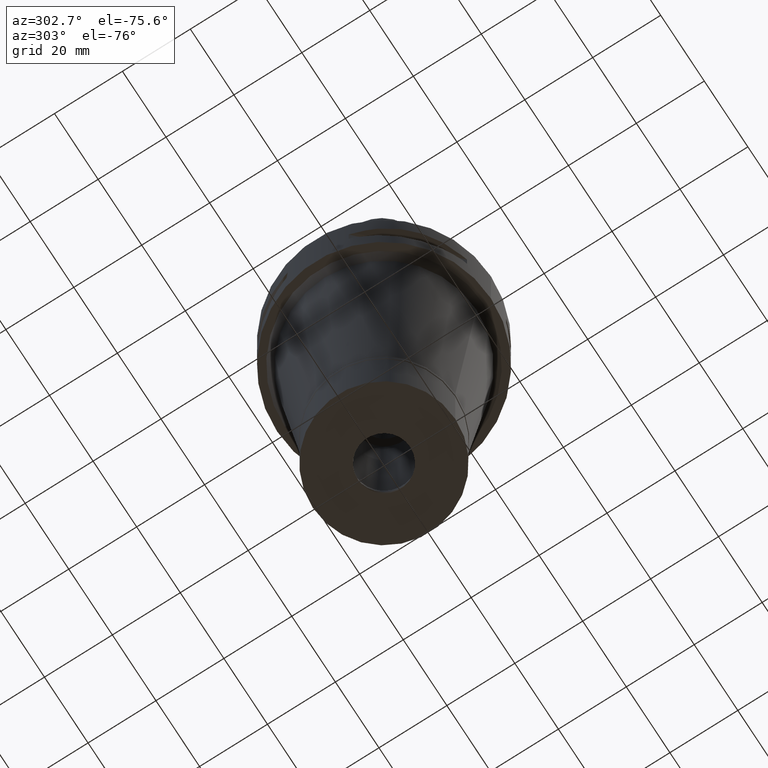
[diagram: clean part render]
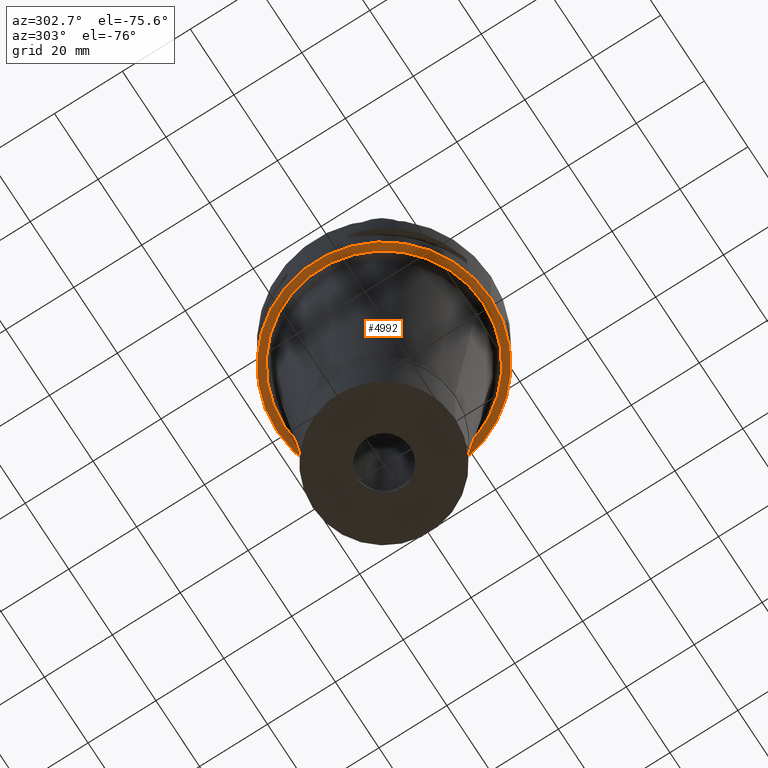
[diagram: same view with one face highlighted and labeled with its STEP entity id]
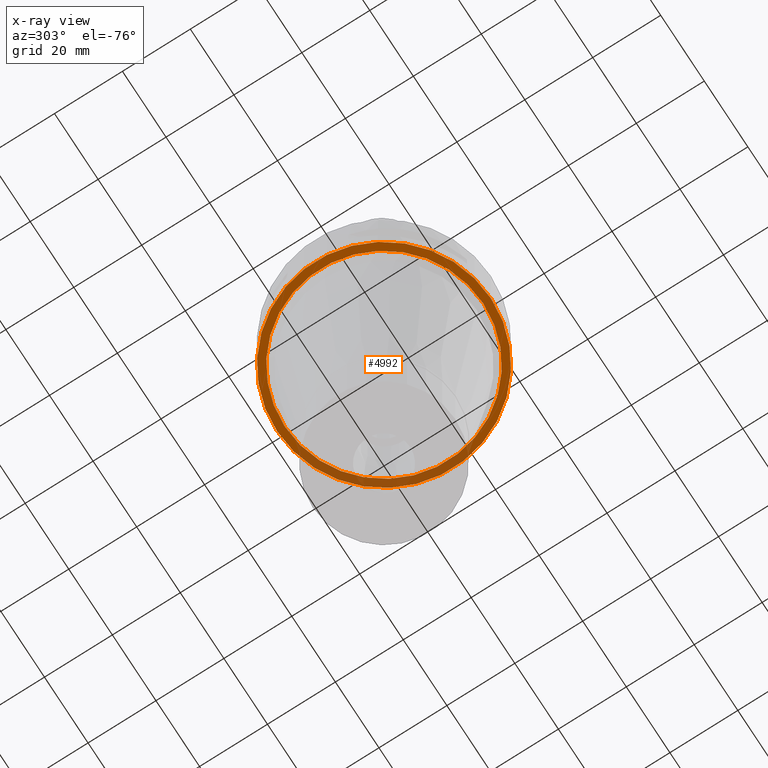
[diagram: x-ray of the same camera — body ghosted, the highlighted face saturated]
A machine part, auxiliary view. The second image highlights one B-rep face of the part: STEP entity #4992.
The next image is the same camera in x-ray: the body ghosted, the highlighted face saturated — about 25% of this face is hidden behind the body in this view.
In plain terms, the highlighted planar face has unit normal (0, 0, -1).
Its self-contained STEP definition (entity closure, byte-faithful):
#72 = DIRECTION ( 'NONE',  ( 0.0000000000000000000, 1.000000000000000000, 0.0000000000000000000 ) ) ;
#149 = EDGE_CURVE ( 'NONE', #3939, #3942, #1286, .T. ) ;
#351 = ORIENTED_EDGE ( 'NONE', *, *, #4332, .F. ) ;
#364 = DIRECTION ( 'NONE',  ( 0.0000000000000000000, 0.0000000000000000000, 1.000000000000000000 ) ) ;
#1023 = EDGE_LOOP ( 'NONE', ( #1024, #2373 ) ) ;
#1024 = ORIENTED_EDGE ( 'NONE', *, *, #3631, .F. ) ;
#1167 = EDGE_LOOP ( 'NONE', ( #5087, #351 ) ) ;
#1286 = CIRCLE ( 'NONE', #4083, 31.50000000000000000 ) ;
#1304 = CARTESIAN_POINT ( 'NONE',  ( 0.0000000000000000000, 0.0000000000000000000, -22.00000000000000000 ) ) ;
#1357 = CIRCLE ( 'NONE', #2183, 31.50000000000000000 ) ;
#1360 = AXIS2_PLACEMENT_3D ( 'NONE', #1304, #3289, #4869 ) ;
#1439 = CIRCLE ( 'NONE', #1360, 29.20294624398999872 ) ;
#1578 = VERTEX_POINT ( 'NONE', #4413 ) ;
#1732 = CARTESIAN_POINT ( 'NONE',  ( 0.0000000000000000000, -31.50000000000000000, -22.00000000000000000 ) ) ;
#1810 = VERTEX_POINT ( 'NONE', #4949 ) ;
#2040 = CARTESIAN_POINT ( 'NONE',  ( 0.0000000000000000000, 0.0000000000000000000, -22.00000000000000000 ) ) ;
#2183 = AXIS2_PLACEMENT_3D ( 'NONE', #4305, #364, #2300 ) ;
#2272 = DIRECTION ( 'NONE',  ( 0.0000000000000000000, -1.000000000000000000, 0.0000000000000000000 ) ) ;
#2300 = DIRECTION ( 'NONE',  ( 0.0000000000000000000, 1.000000000000000000, 0.0000000000000000000 ) ) ;
#2373 = ORIENTED_EDGE ( 'NONE', *, *, #149, .F. ) ;
#2427 = FACE_OUTER_BOUND ( 'NONE', #1023, .T. ) ;
#2462 = DIRECTION ( 'NONE',  ( 0.0000000000000000000, -1.000000000000000000, 0.0000000000000000000 ) ) ;
#3163 = DIRECTION ( 'NONE',  ( 0.0000000000000000000, 0.0000000000000000000, -1.000000000000000000 ) ) ;
#3251 = CIRCLE ( 'NONE', #3900, 29.20294624398999872 ) ;
#3289 = DIRECTION ( 'NONE',  ( 0.0000000000000000000, 0.0000000000000000000, -1.000000000000000000 ) ) ;
#3395 = DIRECTION ( 'NONE',  ( 0.0000000000000000000, 0.0000000000000000000, 1.000000000000000000 ) ) ;
#3420 = AXIS2_PLACEMENT_3D ( 'NONE', #4803, #3163, #2462 ) ;
#3607 = DIRECTION ( 'NONE',  ( 0.0000000000000000000, 0.0000000000000000000, -1.000000000000000000 ) ) ;
#3631 = EDGE_CURVE ( 'NONE', #3942, #3939, #1357, .T. ) ;
#3642 = EDGE_CURVE ( 'NONE', #1810, #1578, #3251, .T. ) ;
#3900 = AXIS2_PLACEMENT_3D ( 'NONE', #2040, #3607, #72 ) ;
#3939 = VERTEX_POINT ( 'NONE', #1732 ) ;
#3942 = VERTEX_POINT ( 'NONE', #4875 ) ;
#4023 = PLANE ( 'NONE',  #3420 ) ;
#4083 = AXIS2_PLACEMENT_3D ( 'NONE', #4592, #3395, #2272 ) ;
#4305 = CARTESIAN_POINT ( 'NONE',  ( 0.0000000000000000000, 0.0000000000000000000, -22.00000000000000000 ) ) ;
#4332 = EDGE_CURVE ( 'NONE', #1578, #1810, #1439, .T. ) ;
#4413 = CARTESIAN_POINT ( 'NONE',  ( 0.0000000000000000000, -29.20294624398999872, -22.00000000000000000 ) ) ;
#4440 = FACE_BOUND ( 'NONE', #1167, .T. ) ;
#4592 = CARTESIAN_POINT ( 'NONE',  ( 0.0000000000000000000, 0.0000000000000000000, -22.00000000000000000 ) ) ;
#4803 = CARTESIAN_POINT ( 'NONE',  ( 0.0000000000000000000, 0.0000000000000000000, -22.00000000000000000 ) ) ;
#4869 = DIRECTION ( 'NONE',  ( 0.0000000000000000000, -1.000000000000000000, 0.0000000000000000000 ) ) ;
#4875 = CARTESIAN_POINT ( 'NONE',  ( 0.0000000000000000000, 31.50000000000000000, -22.00000000000000000 ) ) ;
#4949 = CARTESIAN_POINT ( 'NONE',  ( 0.0000000000000000000, 29.20294624398999872, -22.00000000000000000 ) ) ;
#4992 = ADVANCED_FACE ( 'NONE', ( #2427, #4440 ), #4023, .T. ) ;
#5087 = ORIENTED_EDGE ( 'NONE', *, *, #3642, .F. ) ;